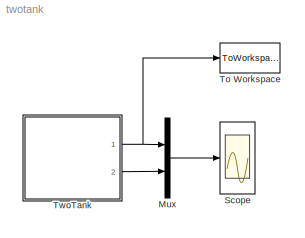
MODEL twotank
KIND model
BLOCK [Mux] Mux
  DisplayOption = bar
  Inputs = 2
  Ports = [2, 1]
  SID = 3
BLOCK [Scope] Scope
  Floating = off
  NumInputPorts = 1
  Ports = [1]
  SID = 2
  ScopeSpecificationString = Simulink.scopes.TimeScopeBlockCfg('CurrentConfiguration', extmgr.ConfigurationSet(extmgr.Configuration('Core','General UI',true),extmgr.Configuration('Core','Source UI',true),extmgr.Configuration('Sources','WiredSimulink',true),extmgr.Configuration('Visuals','Time Domain',true,'SerializedDisplays',{struct('MinYLimReal','11.54271','MaxYLimReal','32.05081','YLabelReal','','MinYLimMag','11.54271','Ma...<+1387ch>
BLOCK [ToWorkspace] To Workspace
  FixptAsFi = on
  MaxDataPoints = inf
  Ports = [1]
  SID = 4
  SampleTime = -1
  Save2DSignal = 3-D array (concatenate along third dimension)
  SaveFormat = Timeseries
  VariableName = simout
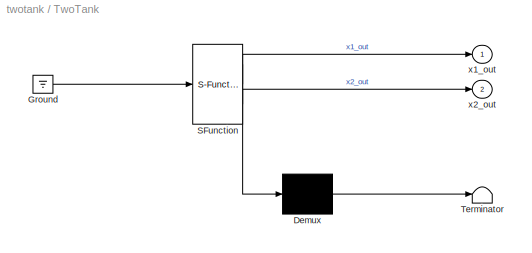
BLOCK [SubSystem] TwoTank
  ErrorFcn = Stateflow.Translate.translate
  PermitHierarchicalResolution = ExplicitOnly
  Ports = [0, 2]
  RequestExecContextInheritance = off
  SFBlockType = Chart
  SID = 1
  TreatAsAtomicUnit = on
BLOCK [Demux] TwoTank/ Demux 
  Outputs = 1
  Ports = [1, 1]
  SID = 1::90
BLOCK [Ground] TwoTank/ Ground 
  SID = 1::92
BLOCK [S-Function] TwoTank/ SFunction 
  EnableBusSupport = on
  FunctionName = sf_sfun
  PortCounts = [1 3]
  Ports = [1, 3]
  SFcnIsStateOwnerBlock = off
  SFunctionDeploymentMode = off
  SID = 1::89
  Tag = Stateflow S-Function twotank 3
BLOCK [Terminator] TwoTank/ Terminator 
  SID = 1::91
BLOCK [Outport] TwoTank/x1_out
  IconDisplay = Port number
  SID = 1::95
BLOCK [Outport] TwoTank/x2_out
  IconDisplay = Port number
  Port = 2
  SID = 1::96
LINE Mux:1 -> Scope:1
LINE TwoTank/ Demux :1 -> TwoTank/ Terminator :1
LINE TwoTank/ Ground :1 -> TwoTank/ SFunction :1
LINE TwoTank/ SFunction :1 -> TwoTank/ Demux :1
LINE TwoTank/ SFunction :2 -> TwoTank/x1_out:1
LINE TwoTank/ SFunction :3 -> TwoTank/x2_out:1
NET TwoTank:1 -> Mux:1, To Workspace:1
LINE TwoTank:2 -> Mux:2
note: NET lines group one-source signal fan-out (src -> all destinations, sorted); 1:1 wires keep LINE
CHART TwoTank states=2 transitions=3
  STATE_LABEL 'Loc1\\ndu:\\nx1_dot = 3.5 - power(x1 - x2 + 15, 0.5);\\nx2_dot = power( x1 - x2 + 15, 0.5) - power(x2, 0.5);\\nx1_out = x1;\\nx2_out = x2;'
  STATE_LABEL 'Loc2\\ndu:\\nx1_dot = 3.5 - power(x1,0.5);\\nx2_dot = power(x1,0.5) - power(x2,0.5);\\nx1_out = x1;\\nx2_out = x2;'
